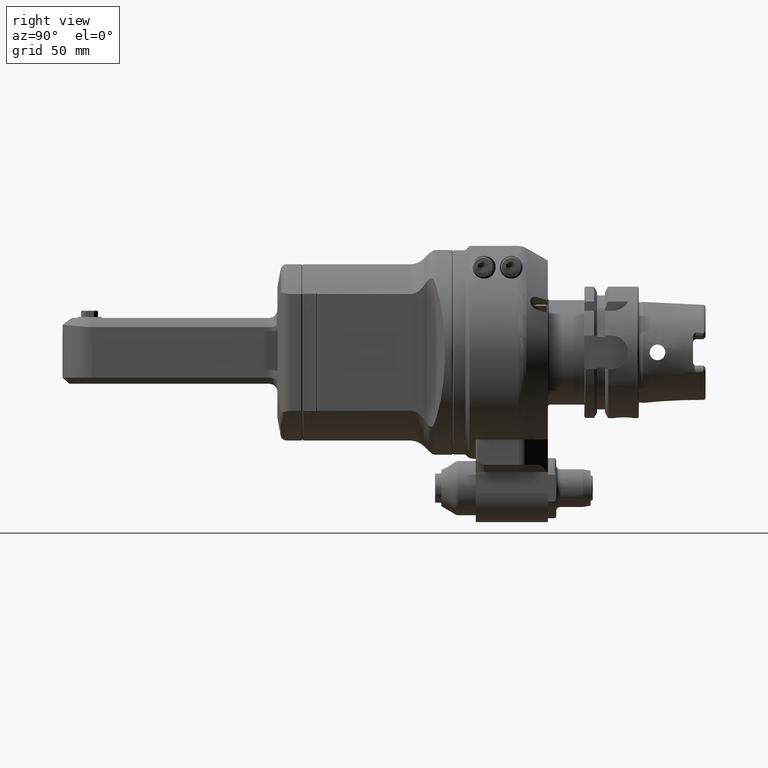
[diagram: clean part render]
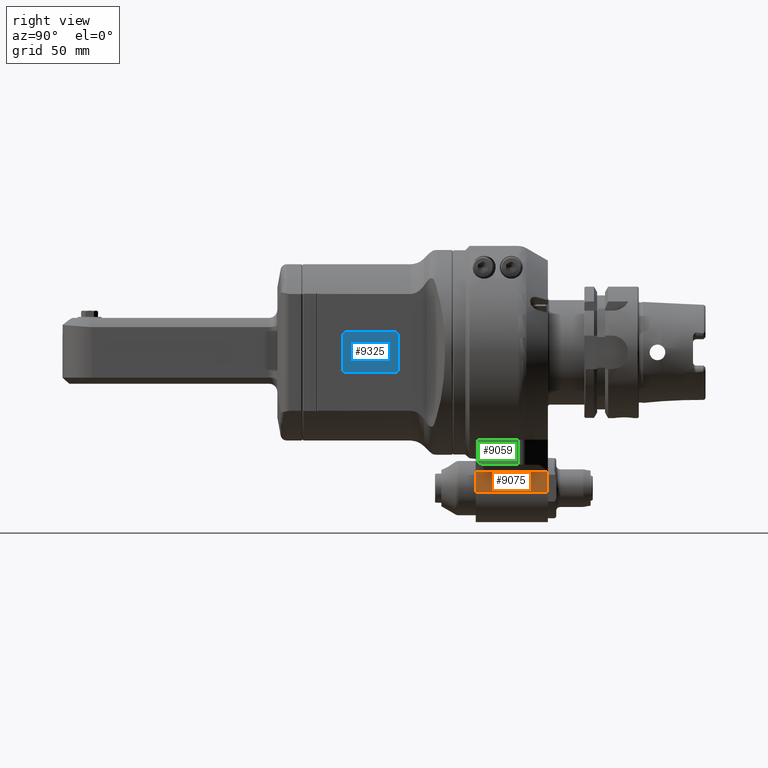
[diagram: same view with three faces highlighted in distinct colors, each labeled with its STEP entity id]
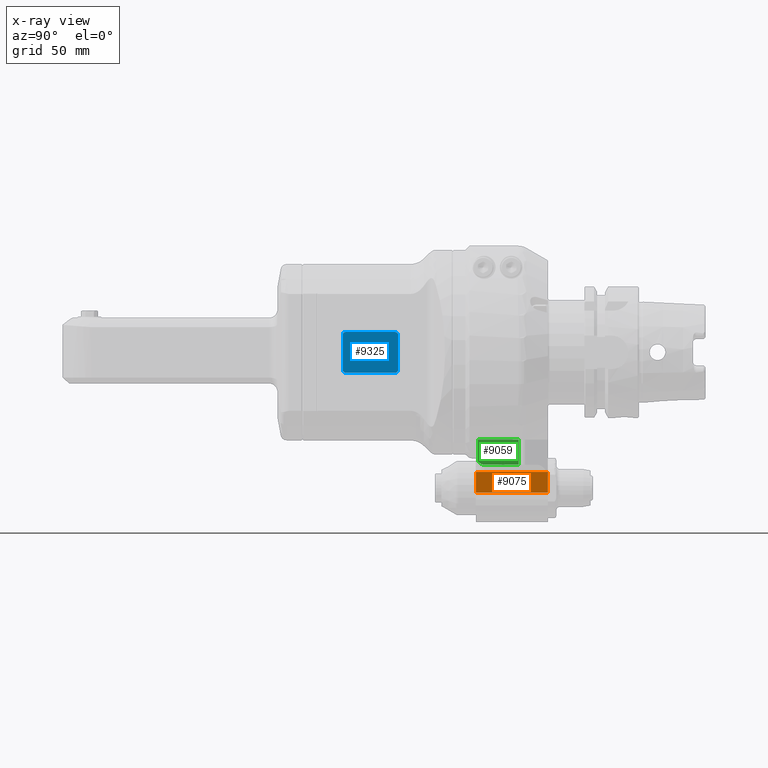
[diagram: x-ray of the same camera — body ghosted, the three highlighted faces saturated]
A machine part, right view with three faces highlighted in distinct colors.
The next image is the same camera in x-ray (body ghosted, the three faces saturated) — at least one of them is partly hidden behind the body in this view.
Their STEP definitions:

[orange] entity #9075 — the highlighted planar face has unit normal (-1, 0, 0).
#409=PLANE('',#9901);
#885=FACE_OUTER_BOUND('',#1453,.T.);
#1453=EDGE_LOOP('',(#7323,#7324,#7325,#7326));
#2660=LINE('',#15403,#3307);
#2683=LINE('',#15479,#3330);
#2692=LINE('',#15510,#3339);
#2695=LINE('',#15518,#3342);
#3307=VECTOR('',#11588,10.);
#3330=VECTOR('',#11645,10.);
#3339=VECTOR('',#11674,34.5);
#3342=VECTOR('',#11685,34.5);
#4104=VERTEX_POINT('',#15400);
#4105=VERTEX_POINT('',#15402);
#4128=VERTEX_POINT('',#15476);
#4129=VERTEX_POINT('',#15478);
#5222=EDGE_CURVE('',#4105,#4104,#2660,.T.);
#5257=EDGE_CURVE('',#4129,#4128,#2683,.T.);
#5274=EDGE_CURVE('',#4128,#4105,#2692,.T.);
#5278=EDGE_CURVE('',#4129,#4104,#2695,.T.);
#7323=ORIENTED_EDGE('',*,*,#5274,.T.);
#7324=ORIENTED_EDGE('',*,*,#5222,.T.);
#7325=ORIENTED_EDGE('',*,*,#5278,.F.);
#7326=ORIENTED_EDGE('',*,*,#5257,.T.);
#9075=ADVANCED_FACE('',(#885),#409,.F.);
#9901=AXIS2_PLACEMENT_3D('',#15517,#11683,#11684);
#11588=DIRECTION('',(0.,0.,-1.));
#11645=DIRECTION('',(0.,0.,1.));
#11674=DIRECTION('',(0.,-1.,0.));
#11683=DIRECTION('center_axis',(-1.,0.,0.));
#11684=DIRECTION('ref_axis',(0.,-1.,0.));
#11685=DIRECTION('',(0.,-1.,0.));
#15400=CARTESIAN_POINT('',(15.,5.,-67.25));
#15402=CARTESIAN_POINT('',(15.,5.,-57.25));
#15403=CARTESIAN_POINT('',(15.,5.,-57.25));
#15476=CARTESIAN_POINT('',(15.,39.5,-57.25));
#15478=CARTESIAN_POINT('',(15.,39.5,-67.25));
#15479=CARTESIAN_POINT('',(15.,39.5,-67.25));
#15510=CARTESIAN_POINT('',(15.,39.5,-57.25));
#15517=CARTESIAN_POINT('Origin',(15.,52.3,-37.7999976));
#15518=CARTESIAN_POINT('',(15.,39.5,-67.25));

[blue] entity #9325 — the highlighted planar face has unit normal (1, 0, -0).
#525=PLANE('',#10325);
#1135=FACE_OUTER_BOUND('',#1733,.T.);
#1733=EDGE_LOOP('',(#8514,#8515,#8516,#8517,#8518,#8519,#8520,#8521));
#2168=CIRCLE('',#10324,1.5);
#2169=CIRCLE('',#10326,1.5);
#2170=CIRCLE('',#10327,1.5);
#2171=CIRCLE('',#10328,1.5);
#2958=LINE('',#47096,#3605);
#2961=LINE('',#47107,#3608);
#2962=LINE('',#47111,#3609);
#2963=LINE('',#47113,#3610);
#3605=VECTOR('',#12790,16.5);
#3608=VECTOR('',#12801,16.5);
#3609=VECTOR('',#12804,23.5);
#3610=VECTOR('',#12807,23.5);
#4513=VERTEX_POINT('',#47093);
#4514=VERTEX_POINT('',#47095);
#4515=VERTEX_POINT('',#47099);
#4516=VERTEX_POINT('',#47103);
#4517=VERTEX_POINT('',#47104);
#4518=VERTEX_POINT('',#47106);
#4519=VERTEX_POINT('',#47108);
#4520=VERTEX_POINT('',#47110);
#5857=EDGE_CURVE('',#4514,#4513,#2958,.T.);
#5859=EDGE_CURVE('',#4513,#4515,#2168,.T.);
#5861=EDGE_CURVE('',#4516,#4517,#2169,.T.);
#5862=EDGE_CURVE('',#4517,#4518,#2961,.T.);
#5863=EDGE_CURVE('',#4518,#4519,#2170,.T.);
#5864=EDGE_CURVE('',#4519,#4520,#2962,.T.);
#5865=EDGE_CURVE('',#4520,#4514,#2171,.T.);
#5866=EDGE_CURVE('',#4515,#4516,#2963,.T.);
#8514=ORIENTED_EDGE('',*,*,#5861,.T.);
#8515=ORIENTED_EDGE('',*,*,#5862,.T.);
#8516=ORIENTED_EDGE('',*,*,#5863,.T.);
#8517=ORIENTED_EDGE('',*,*,#5864,.T.);
#8518=ORIENTED_EDGE('',*,*,#5865,.T.);
#8519=ORIENTED_EDGE('',*,*,#5857,.T.);
#8520=ORIENTED_EDGE('',*,*,#5859,.T.);
#8521=ORIENTED_EDGE('',*,*,#5866,.T.);
#9325=ADVANCED_FACE('',(#1135),#525,.T.);
#10324=AXIS2_PLACEMENT_3D('',#47100,#12794,#12795);
#10325=AXIS2_PLACEMENT_3D('',#47102,#12797,#12798);
#10326=AXIS2_PLACEMENT_3D('',#47105,#12799,#12800);
#10327=AXIS2_PLACEMENT_3D('',#47109,#12802,#12803);
#10328=AXIS2_PLACEMENT_3D('',#47112,#12805,#12806);
#12790=DIRECTION('',(0.,1.,0.));
#12794=DIRECTION('center_axis',(0.,0.,1.));
#12795=DIRECTION('ref_axis',(1.,0.,0.));
#12797=DIRECTION('center_axis',(0.,0.,1.));
#12798=DIRECTION('ref_axis',(1.,0.,0.));
#12799=DIRECTION('center_axis',(0.,0.,1.));
#12800=DIRECTION('ref_axis',(0.,1.,0.));
#12801=DIRECTION('',(0.,-1.,0.));
#12802=DIRECTION('center_axis',(0.,0.,1.));
#12803=DIRECTION('ref_axis',(-1.,-1.42108547152E-14,0.));
#12804=DIRECTION('',(1.,0.,0.));
#12805=DIRECTION('center_axis',(0.,0.,1.));
#12806=DIRECTION('ref_axis',(0.,-1.,0.));
#12807=DIRECTION('',(-1.,0.,0.));
#47093=CARTESIAN_POINT('',(49.7,8.25,31.8));
#47095=CARTESIAN_POINT('',(49.7,-8.25,31.8));
#47096=CARTESIAN_POINT('',(49.7,-8.25,31.8));
#47099=CARTESIAN_POINT('',(48.2,9.75,31.8));
#47100=CARTESIAN_POINT('Origin',(48.2,8.25,31.8));
#47102=CARTESIAN_POINT('Origin',(0.,0.,31.8));
#47103=CARTESIAN_POINT('',(24.7,9.75,31.8));
#47104=CARTESIAN_POINT('',(23.2,8.25,31.8));
#47105=CARTESIAN_POINT('Origin',(24.7,8.25,31.8));
#47106=CARTESIAN_POINT('',(23.2,-8.25,31.8));
#47107=CARTESIAN_POINT('',(23.2,8.25,31.8));
#47108=CARTESIAN_POINT('',(24.7,-9.75,31.8));
#47109=CARTESIAN_POINT('Origin',(24.7,-8.25,31.8));
#47110=CARTESIAN_POINT('',(48.2,-9.75,31.8));
#47111=CARTESIAN_POINT('',(24.7,-9.75,31.8));
#47112=CARTESIAN_POINT('Origin',(48.2,-8.25,31.8));
#47113=CARTESIAN_POINT('',(48.2,9.75,31.8));

[green] entity #9059 — the highlighted planar face has unit normal (-1, 0, 0).
#229=(
BOUNDED_CURVE()
B_SPLINE_CURVE(2,(#15348,#15349,#15350),.UNSPECIFIED.,.F.,.F.)
B_SPLINE_CURVE_WITH_KNOTS((3,3),(1.73736103353156,2.47170469126801),
 .UNSPECIFIED.)
CURVE()
GEOMETRIC_REPRESENTATION_ITEM()
RATIONAL_B_SPLINE_CURVE((1.75262800199672,1.75262800199672,1.61816620350837))
REPRESENTATION_ITEM('')
);
#400=PLANE('',#9858);
#869=FACE_OUTER_BOUND('',#1432,.T.);
#1432=EDGE_LOOP('',(#7197,#7198,#7199,#7200,#7201));
#2642=LINE('',#15338,#3289);
#2645=LINE('',#15345,#3292);
#2646=LINE('',#15347,#3293);
#2647=LINE('',#15351,#3294);
#3289=VECTOR('',#11544,16.58801200719);
#3292=VECTOR('',#11549,19.58801152481);
#3293=VECTOR('',#11550,10.59664825895);
#3294=VECTOR('',#11551,12.03589858901);
#4075=VERTEX_POINT('',#15331);
#4077=VERTEX_POINT('',#15337);
#4079=VERTEX_POINT('',#15343);
#4080=VERTEX_POINT('',#15344);
#4081=VERTEX_POINT('',#15346);
#5192=EDGE_CURVE('',#4077,#4075,#2642,.T.);
#5195=EDGE_CURVE('',#4079,#4080,#2645,.T.);
#5196=EDGE_CURVE('',#4081,#4079,#2646,.T.);
#5197=EDGE_CURVE('',#4077,#4081,#229,.T.);
#5198=EDGE_CURVE('',#4080,#4075,#2647,.T.);
#7197=ORIENTED_EDGE('',*,*,#5195,.F.);
#7198=ORIENTED_EDGE('',*,*,#5196,.F.);
#7199=ORIENTED_EDGE('',*,*,#5197,.F.);
#7200=ORIENTED_EDGE('',*,*,#5192,.T.);
#7201=ORIENTED_EDGE('',*,*,#5198,.F.);
#9059=ADVANCED_FACE('',(#869),#400,.F.);
#9858=AXIS2_PLACEMENT_3D('',#15342,#11547,#11548);
#11544=DIRECTION('',(4.371282475133E-12,1.,1.17976780454E-8));
#11547=DIRECTION('center_axis',(-1.,0.,0.));
#11548=DIRECTION('ref_axis',(0.,0.,-1.));
#11549=DIRECTION('',(0.,1.,0.));
#11550=DIRECTION('',(3.486783873224E-14,8.150357303662E-13,1.));
#11551=DIRECTION('',(6.022780049711E-12,-1.751169642154E-10,-1.));
#15331=CARTESIAN_POINT('',(29.0000000101783,25.5880115227062,-53.7858985008135));
#15337=CARTESIAN_POINT('',(29.,8.99999951552,-53.78589878471));
#15338=CARTESIAN_POINT('',(29.,8.99999951552,-53.78589878471));
#15342=CARTESIAN_POINT('Origin',(29.,31.,-75.75));
#15343=CARTESIAN_POINT('',(29.,6.,-41.75));
#15344=CARTESIAN_POINT('',(29.,25.58801152481,-41.75));
#15345=CARTESIAN_POINT('',(29.,6.,-41.75));
#15346=CARTESIAN_POINT('',(29.,5.99999999999,-52.34664825895));
#15347=CARTESIAN_POINT('',(29.,5.99999999999,-52.34664825895));
#15348=CARTESIAN_POINT('Ctrl Pts',(29.,8.99999951551998,-53.7858987847063));
#15349=CARTESIAN_POINT('Ctrl Pts',(29.,7.61507989170259,-53.7858987847063));
#15350=CARTESIAN_POINT('Ctrl Pts',(29.,6.00000000007517,-52.3466482590111));
#15351=CARTESIAN_POINT('',(29.,25.58801152481,-41.75));